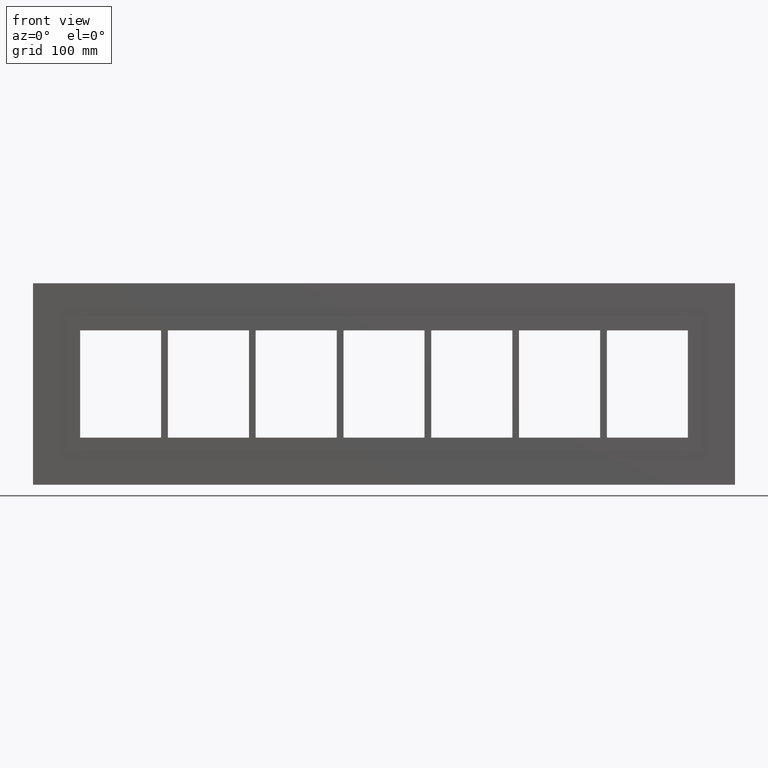
[diagram: clean part render]
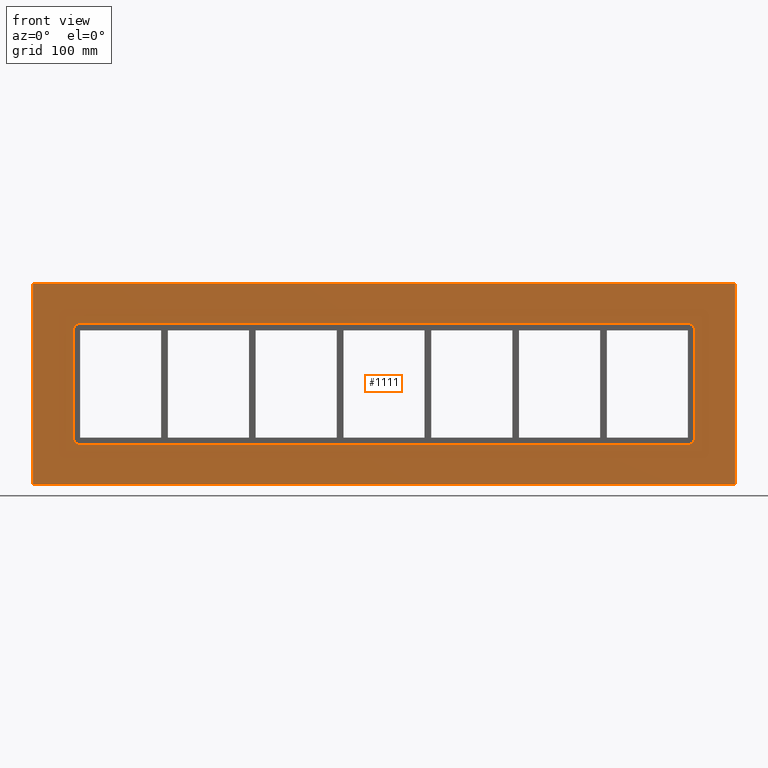
[diagram: same view with one face highlighted and labeled with its STEP entity id]
A machine part, front view. The second image highlights one B-rep face of the part: STEP entity #1111.
In plain terms, the highlighted planar face has unit normal (0, 1, 0).
Its self-contained STEP definition (entity closure, byte-faithful):
#1002=CARTESIAN_POINT('',(3.809313E-014,0.0,-1.980711E-015));
#1003=DIRECTION('',(0.0,1.0,0.0));
#1004=DIRECTION('',(0.0,0.0,1.0));
#1005=AXIS2_PLACEMENT_3D('',#1002,#1003,#1004);
#1006=PLANE('',#1005);
#1007=CARTESIAN_POINT('',(-521.75,0.0,149.75));
#1008=VERTEX_POINT('',#1007);
#1009=CARTESIAN_POINT('',(521.75000000000011,0.0,149.75));
#1010=VERTEX_POINT('',#1009);
#1011=CARTESIAN_POINT('',(-521.75,0.0,149.75));
#1012=DIRECTION('',(1.0,0.0,0.0));
#1013=VECTOR('',#1012,1043.5000000000002);
#1014=LINE('',#1011,#1013);
#1015=EDGE_CURVE('',#1008,#1010,#1014,.T.);
#1016=ORIENTED_EDGE('',*,*,#1015,.F.);
#1017=CARTESIAN_POINT('',(-521.75,0.0,-149.75000000000003));
#1018=VERTEX_POINT('',#1017);
#1019=CARTESIAN_POINT('',(-521.75,0.0,-149.75000000000003));
#1020=DIRECTION('',(0.0,0.0,1.0));
#1021=VECTOR('',#1020,299.5);
#1022=LINE('',#1019,#1021);
#1023=EDGE_CURVE('',#1018,#1008,#1022,.T.);
#1024=ORIENTED_EDGE('',*,*,#1023,.F.);
#1025=CARTESIAN_POINT('',(521.75000000000011,0.0,-149.75000000000003));
#1026=VERTEX_POINT('',#1025);
#1027=CARTESIAN_POINT('',(521.75000000000011,0.0,-149.75000000000003));
#1028=DIRECTION('',(-1.0,0.0,0.0));
#1029=VECTOR('',#1028,1043.5000000000002);
#1030=LINE('',#1027,#1029);
#1031=EDGE_CURVE('',#1026,#1018,#1030,.T.);
#1032=ORIENTED_EDGE('',*,*,#1031,.F.);
#1033=CARTESIAN_POINT('',(521.75000000000011,0.0,149.75));
#1034=DIRECTION('',(0.0,0.0,-1.0));
#1035=VECTOR('',#1034,299.5);
#1036=LINE('',#1033,#1035);
#1037=EDGE_CURVE('',#1010,#1026,#1036,.T.);
#1038=ORIENTED_EDGE('',*,*,#1037,.F.);
#1039=EDGE_LOOP('',(#1016,#1024,#1032,#1038));
#1040=FACE_OUTER_BOUND('',#1039,.T.);
#1041=CARTESIAN_POINT('',(-461.75000000000006,0.0,-79.750000000000014));
#1042=VERTEX_POINT('',#1041);
#1043=CARTESIAN_POINT('',(-451.75000000000006,0.0,-89.750000000000014));
#1044=VERTEX_POINT('',#1043);
#1045=CARTESIAN_POINT('',(-451.75000000000006,0.0,-79.750000000000014));
#1046=DIRECTION('',(0.0,-1.0,0.0));
#1047=DIRECTION('',(-0.707106781186547,0.0,-0.707106781186547));
#1048=AXIS2_PLACEMENT_3D('',#1045,#1046,#1047);
#1049=CIRCLE('',#1048,9.999999999999998);
#1050=EDGE_CURVE('',#1042,#1044,#1049,.T.);
#1051=ORIENTED_EDGE('',*,*,#1050,.F.);
#1052=CARTESIAN_POINT('',(-461.75000000000006,0.0,79.750000000000014));
#1053=VERTEX_POINT('',#1052);
#1054=CARTESIAN_POINT('',(-461.75000000000006,0.0,79.750000000000028));
#1055=DIRECTION('',(0.0,0.0,-1.0));
#1056=VECTOR('',#1055,159.50000000000006);
#1057=LINE('',#1054,#1056);
#1058=EDGE_CURVE('',#1053,#1042,#1057,.T.);
#1059=ORIENTED_EDGE('',*,*,#1058,.F.);
#1060=CARTESIAN_POINT('',(-451.75000000000006,0.0,89.750000000000014));
#1061=VERTEX_POINT('',#1060);
#1062=CARTESIAN_POINT('',(-451.75000000000006,0.0,79.750000000000014));
#1063=DIRECTION('',(0.0,-1.0,0.0));
#1064=DIRECTION('',(-0.707106781186547,0.0,0.707106781186547));
#1065=AXIS2_PLACEMENT_3D('',#1062,#1063,#1064);
#1066=CIRCLE('',#1065,9.999999999999998);
#1067=EDGE_CURVE('',#1061,#1053,#1066,.T.);
#1068=ORIENTED_EDGE('',*,*,#1067,.F.);
#1069=CARTESIAN_POINT('',(451.75000000000006,0.0,89.750000000000014));
#1070=VERTEX_POINT('',#1069);
#1071=CARTESIAN_POINT('',(451.75,0.0,89.750000000000014));
#1072=DIRECTION('',(-1.0,0.0,0.0));
#1073=VECTOR('',#1072,903.5);
#1074=LINE('',#1071,#1073);
#1075=EDGE_CURVE('',#1070,#1061,#1074,.T.);
#1076=ORIENTED_EDGE('',*,*,#1075,.F.);
#1077=CARTESIAN_POINT('',(461.75000000000006,0.0,79.750000000000014));
#1078=VERTEX_POINT('',#1077);
#1079=CARTESIAN_POINT('',(451.75000000000006,0.0,79.750000000000014));
#1080=DIRECTION('',(0.0,-1.0,0.0));
#1081=DIRECTION('',(0.707106781186547,0.0,0.707106781186547));
#1082=AXIS2_PLACEMENT_3D('',#1079,#1080,#1081);
#1083=CIRCLE('',#1082,9.999999999999998);
#1084=EDGE_CURVE('',#1078,#1070,#1083,.T.);
#1085=ORIENTED_EDGE('',*,*,#1084,.F.);
#1086=CARTESIAN_POINT('',(461.75000000000006,0.0,-79.750000000000014));
#1087=VERTEX_POINT('',#1086);
#1088=CARTESIAN_POINT('',(461.75000000000006,0.0,-79.750000000000028));
#1089=DIRECTION('',(0.0,0.0,1.0));
#1090=VECTOR('',#1089,159.50000000000006);
#1091=LINE('',#1088,#1090);
#1092=EDGE_CURVE('',#1087,#1078,#1091,.T.);
#1093=ORIENTED_EDGE('',*,*,#1092,.F.);
#1094=CARTESIAN_POINT('',(451.75000000000006,0.0,-89.750000000000014));
#1095=VERTEX_POINT('',#1094);
#1096=CARTESIAN_POINT('',(451.75000000000006,0.0,-79.750000000000014));
#1097=DIRECTION('',(0.0,-1.0,0.0));
#1098=DIRECTION('',(0.707106781186547,0.0,-0.707106781186547));
#1099=AXIS2_PLACEMENT_3D('',#1096,#1097,#1098);
#1100=CIRCLE('',#1099,9.999999999999998);
#1101=EDGE_CURVE('',#1095,#1087,#1100,.T.);
#1102=ORIENTED_EDGE('',*,*,#1101,.F.);
#1103=CARTESIAN_POINT('',(-451.75000000000017,0.0,-89.750000000000014));
#1104=DIRECTION('',(1.0,0.0,0.0));
#1105=VECTOR('',#1104,903.50000000000023);
#1106=LINE('',#1103,#1105);
#1107=EDGE_CURVE('',#1044,#1095,#1106,.T.);
#1108=ORIENTED_EDGE('',*,*,#1107,.F.);
#1109=EDGE_LOOP('',(#1051,#1059,#1068,#1076,#1085,#1093,#1102,#1108));
#1110=FACE_BOUND('',#1109,.T.);
#1111=ADVANCED_FACE('',(#1040,#1110),#1006,.F.);